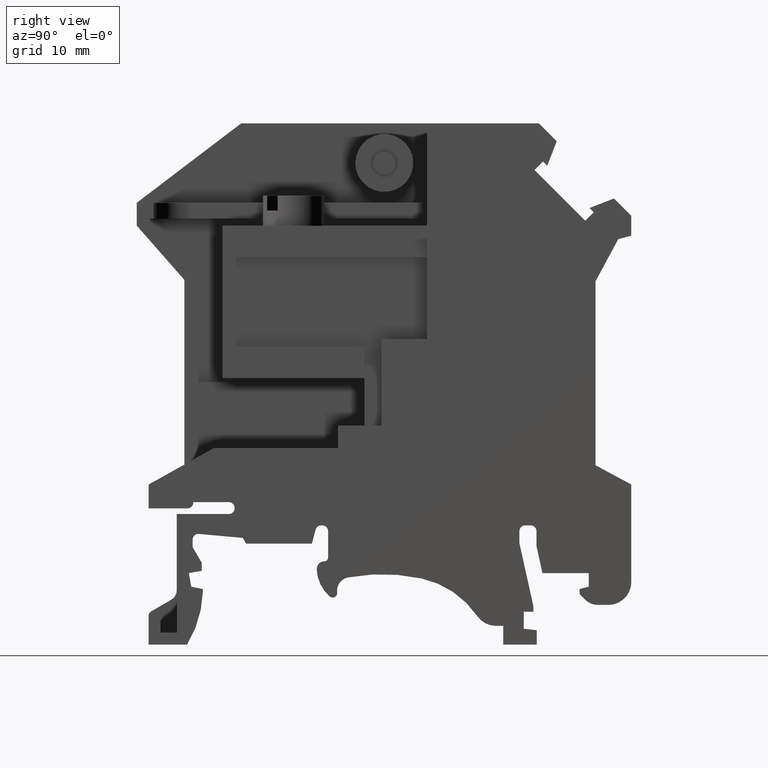
[diagram: clean part render]
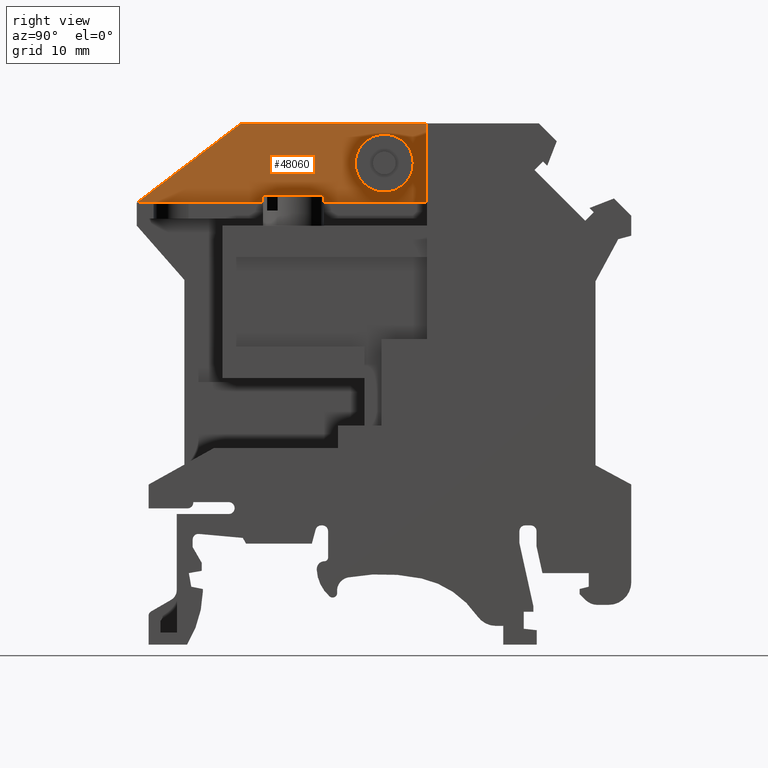
[diagram: same view with one face highlighted and labeled with its STEP entity id]
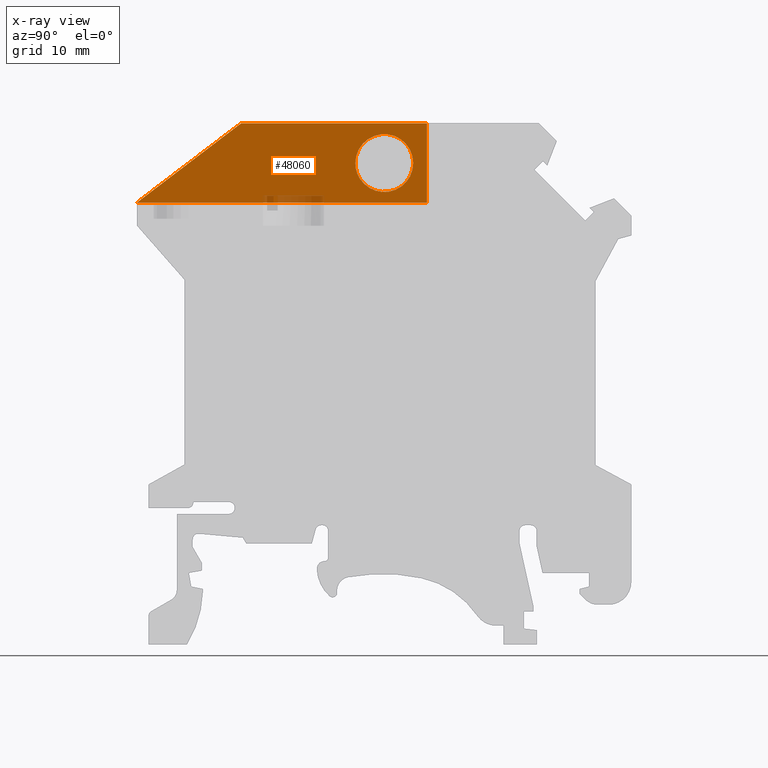
[diagram: x-ray of the same camera — body ghosted, the highlighted face saturated]
A machine part, right view. The second image highlights one B-rep face of the part: STEP entity #48060.
The next image is the same camera in x-ray: the body ghosted, the highlighted face saturated — about 2% of this face is hidden behind the body in this view.
In plain terms, the highlighted planar face has unit normal (1, 0, 0).
Its self-contained STEP definition (entity closure, byte-faithful):
#36360=CARTESIAN_POINT('',(379.850684570485,19.9135335444685,-11.));
#36370=DIRECTION('',(0.,0.,1.));
#36380=DIRECTION('',(1.,0.,0.));
#36390=AXIS2_PLACEMENT_3D('',#36360,#36370,#36380);
#36400=PLANE('',#36390);
#36410=CARTESIAN_POINT('',(-140.899315429515,86.824949462381,-11.));
#36420=DIRECTION('',(0.,1.,0.));
#36430=VECTOR('',#36420,1.);
#36440=LINE('',#36410,#36430);
#38050=CARTESIAN_POINT('',(-166.449315429515,288.437846858691,-11.));
#38060=VERTEX_POINT('',#38050);
#40000=CARTESIAN_POINT('',(-157.249315429512,295.437846858691,-11.));
#40010=VERTEX_POINT('',#40000);
#40040=CARTESIAN_POINT('',(-151.979216999529,299.447704359767,-11.));
#40050=DIRECTION('',(-0.795828694120857,-0.605521832483265,0.));
#40060=VECTOR('',#40050,1.);
#40070=LINE('',#40040,#40060);
#40080=EDGE_CURVE('',#40010,#38060,#40070,.T.);
#44090=CARTESIAN_POINT('',(-140.899315429515,288.437846858691,-11.));
#44100=VERTEX_POINT('',#44090);
#44130=CARTESIAN_POINT('',(-140.899315429515,295.437846858691,-11.));
#44140=VERTEX_POINT('',#44130);
#44150=EDGE_CURVE('',#44100,#44140,#36440,.T.);
#47580=CARTESIAN_POINT('',(-151.979216999529,288.437846858691,-11.));
#47590=DIRECTION('',(1.,0.,0.));
#47600=VECTOR('',#47590,1.);
#47610=LINE('',#47580,#47600);
#47620=EDGE_CURVE('',#38060,#44100,#47610,.T.);
#47760=CARTESIAN_POINT('',(-144.649315429515,291.937846858691,-11.));
#47770=DIRECTION('',(0.,0.,1.));
#47780=DIRECTION('',(1.,0.,0.));
#47790=AXIS2_PLACEMENT_3D('',#47760,#47770,#47780);
#47800=CIRCLE('',#47790,2.55);
#47810=CARTESIAN_POINT('',(-146.804375238011,290.574682443881,-11.));
#47820=VERTEX_POINT('',#47810);
#47830=CARTESIAN_POINT('',(-142.099315429515,291.937846858691,-11.));
#47840=VERTEX_POINT('',#47830);
#47850=EDGE_CURVE('',#47820,#47840,#47800,.T.);
#47860=ORIENTED_EDGE('',*,*,#47850,.F.);
#47870=CARTESIAN_POINT('',(-147.199315429515,291.937846858691,-11.));
#47880=VERTEX_POINT('',#47870);
#47890=EDGE_CURVE('',#47840,#47880,#47800,.T.);
#47900=ORIENTED_EDGE('',*,*,#47890,.F.);
#47910=EDGE_CURVE('',#47880,#47820,#47800,.T.);
#47920=ORIENTED_EDGE('',*,*,#47910,.F.);
#47930=EDGE_LOOP('',(#47920,#47900,#47860));
#47940=FACE_BOUND('',#47930,.T.);
#47950=ORIENTED_EDGE('',*,*,#44150,.T.);
#47960=ORIENTED_EDGE('',*,*,#47620,.T.);
#47970=ORIENTED_EDGE('',*,*,#40080,.T.);
#47980=CARTESIAN_POINT('',(-151.979216999529,295.437846858691,-11.));
#47990=DIRECTION('',(1.,0.,0.));
#48000=VECTOR('',#47990,1.);
#48010=LINE('',#47980,#48000);
#48020=EDGE_CURVE('',#40010,#44140,#48010,.T.);
#48030=ORIENTED_EDGE('',*,*,#48020,.F.);
#48040=EDGE_LOOP('',(#48030,#47970,#47960,#47950));
#48050=FACE_OUTER_BOUND('',#48040,.T.);
#48060=ADVANCED_FACE('',(#47940,#48050),#36400,.T.);